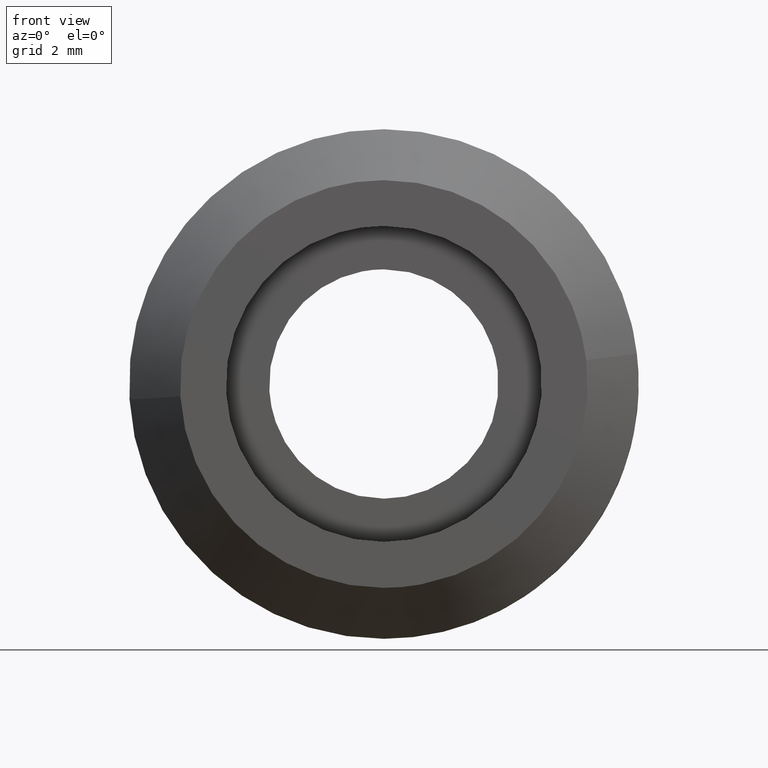
[diagram: clean part render]
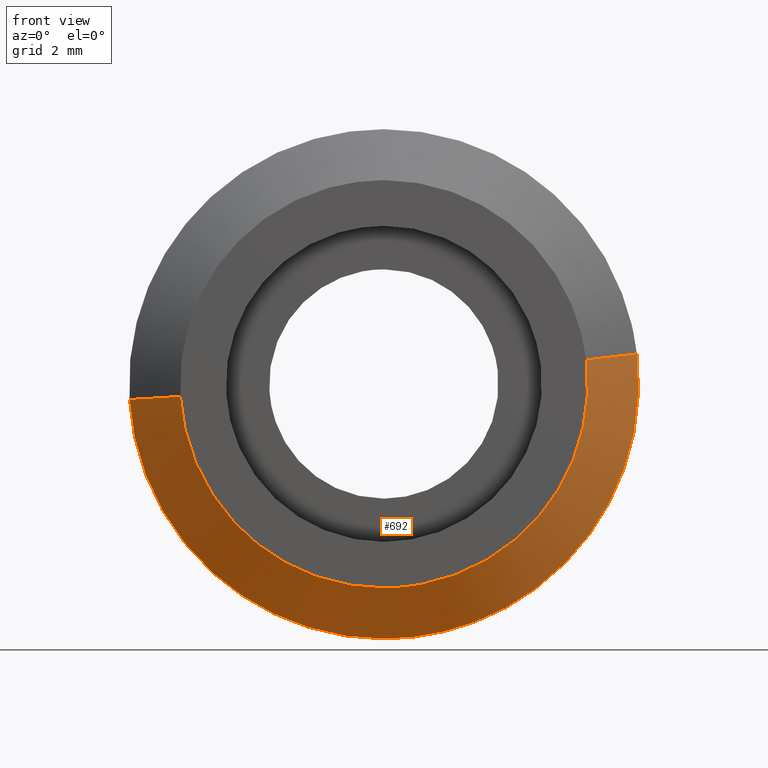
[diagram: same view with one face highlighted and labeled with its STEP entity id]
A machine part, front view. The second image highlights one B-rep face of the part: STEP entity #692.
In plain terms, the highlighted face is a freeform B-spline surface patch.
Its self-contained STEP definition (entity closure, byte-faithful):
#62=CARTESIAN_POINT('',(1.758087682605363,1.053535E-014,-4.680718716208636));
#63=VERTEX_POINT('',#62);
#64=CARTESIAN_POINT('',(0.0,0.0,-5.0));
#65=VERTEX_POINT('',#64);
#66=CARTESIAN_POINT('',(1.758087682605364,1.053535E-014,-4.680718716208636));
#67=CARTESIAN_POINT('',(0.908035722421032,0.0,-5.000000000000001));
#68=CARTESIAN_POINT('',(0.0,0.0,-5.0));
#76=(BOUNDED_CURVE()B_SPLINE_CURVE(2,(#66,#67,#68),.UNSPECIFIED.,.F.,.U.)B_SPLINE_CURVE_WITH_KNOTS((3,3),(0.440284244778167,0.500000000000000),.UNSPECIFIED.)CURVE()GEOMETRIC_REPRESENTATION_ITEM()RATIONAL_B_SPLINE_CURVE((0.893499645046490,0.930038640956804,1.0))REPRESENTATION_ITEM(''));
#77=EDGE_CURVE('',#63,#65,#76,.T.);
#79=CARTESIAN_POINT('',(-4.990673992109418,2.867984E-013,-0.305242697675468));
#80=VERTEX_POINT('',#79);
#81=CARTESIAN_POINT('',(0.0,0.0,-5.0));
#82=CARTESIAN_POINT('',(-4.703530334524016,0.0,-5.0));
#83=CARTESIAN_POINT('',(-4.990673992109418,2.867984E-013,-0.305242697675468));
#91=(BOUNDED_CURVE()B_SPLINE_CURVE(2,(#81,#82,#83),.UNSPECIFIED.,.F.,.U.)B_SPLINE_CURVE_WITH_KNOTS((3,3),(0.500000000000000,0.739332962241805),.UNSPECIFIED.)CURVE()GEOMETRIC_REPRESENTATION_ITEM()RATIONAL_B_SPLINE_CURVE((1.0,0.719603993283357,0.976072041672852))REPRESENTATION_ITEM(''));
#92=EDGE_CURVE('',#65,#80,#91,.T.);
#161=CARTESIAN_POINT('',(4.965047631818395,9.866747E-013,0.590171173291608));
#162=VERTEX_POINT('',#161);
#163=CARTESIAN_POINT('',(4.965047631818395,9.866747E-013,0.590171173291608));
#164=CARTESIAN_POINT('',(5.0,0.0,0.296120598267331));
#165=CARTESIAN_POINT('',(5.0,0.0,0.0));
#166=CARTESIAN_POINT('',(5.0,0.0,-3.463049708763557));
#167=CARTESIAN_POINT('',(1.758087682605364,1.053535E-014,-4.680718716208636));
#175=(BOUNDED_CURVE()B_SPLINE_CURVE(2,(#163,#164,#165,#166,#167),.UNSPECIFIED.,.F.,.U.)B_SPLINE_CURVE_WITH_KNOTS((3,2,3),(0.229562473515120,0.250000000000000,0.440284244778167),.UNSPECIFIED.)CURVE()GEOMETRIC_REPRESENTATION_ITEM()RATIONAL_B_SPLINE_CURVE((0.956026754186858,0.976055948333033,1.0,0.777068140229744,0.893499645046490))REPRESENTATION_ITEM(''));
#176=EDGE_CURVE('',#162,#63,#175,.T.);
#621=CARTESIAN_POINT('',(3.947212867295573,-1.025000000000000,0.469186082760615));
#622=CARTESIAN_POINT('',(3.960640771408207,-1.025000000000000,0.356218546335961));
#623=CARTESIAN_POINT('',(3.967585823726919,-1.025000000000000,0.242667944651057));
#624=CARTESIAN_POINT('',(4.210253768377976,-1.025000000000000,-3.724917879075863));
#625=CARTESIAN_POINT('',(0.242667944651057,-1.025000000000000,-3.967585823726919));
#626=CARTESIAN_POINT('',(-3.724917879075863,-1.025000000000000,-4.210253768377976));
#627=CARTESIAN_POINT('',(-3.967585823726919,-1.025000000000000,-0.242667944651057));
#628=CARTESIAN_POINT('',(4.990493500931398,0.025625000000000,0.593195800546872));
#629=CARTESIAN_POINT('',(5.007470509888897,0.025625000000000,0.450370020611236));
#630=CARTESIAN_POINT('',(5.016251196318892,0.025625000000000,0.306807066499866));
#631=CARTESIAN_POINT('',(5.323058262818757,0.025625000000000,-4.709444129819027));
#632=CARTESIAN_POINT('',(0.306807066499866,0.025625000000000,-5.016251196318892));
#633=CARTESIAN_POINT('',(-4.709444129819027,0.025625000000000,-5.323058262818757));
#634=CARTESIAN_POINT('',(-5.016251196318892,0.025625000000000,-0.306807066499866));
#642=(BOUNDED_SURFACE()B_SPLINE_SURFACE(2,1,((#621,#628),(#622,#629),(#623,#630),(#624,#631),(#625,#632),(#626,#633),(#627,#634)),.UNSPECIFIED.,.F.,.F.,.U.)B_SPLINE_SURFACE_WITH_KNOTS((3,2,2,3),(2,2),(0.0,0.333069125504206,8.659797263109345,16.986525400714481),(0.0,1.0),.UNSPECIFIED.)GEOMETRIC_REPRESENTATION_ITEM()RATIONAL_B_SPLINE_SURFACE(((0.977505800795127,0.977505800795127),(0.988284271247462,0.988284271247462),(1.0,1.0),(0.707106781186548,0.707106781186548),(1.0,1.0),(0.707106781186548,0.707106781186548),(1.0,1.0)))REPRESENTATION_ITEM('')SURFACE());
#643=CARTESIAN_POINT('',(3.972038105454676,-0.999999999999833,0.472136938628357));
#644=VERTEX_POINT('',#643);
#645=CARTESIAN_POINT('',(0.0,-1.0,-4.0));
#646=VERTEX_POINT('',#645);
#647=CARTESIAN_POINT('',(3.972038105454676,-0.999999999999833,0.472136938628357));
#648=CARTESIAN_POINT('',(4.0,-1.0,0.236896478608957));
#649=CARTESIAN_POINT('',(4.0,-1.0,0.0));
#650=CARTESIAN_POINT('',(4.000000000000000,-1.0,-4.000000000000000));
#651=CARTESIAN_POINT('',(0.0,-1.0,-4.0));
#659=(BOUNDED_CURVE()B_SPLINE_CURVE(2,(#647,#648,#649,#650,#651),.UNSPECIFIED.,.F.,.U.)B_SPLINE_CURVE_WITH_KNOTS((3,2,3),(0.229562473515533,0.250000000000000,0.500000000000000),.UNSPECIFIED.)CURVE()GEOMETRIC_REPRESENTATION_ITEM()RATIONAL_B_SPLINE_CURVE((0.956026754187668,0.976055948333518,1.0,0.707106781186548,1.0))REPRESENTATION_ITEM(''));
#660=EDGE_CURVE('',#644,#646,#659,.T.);
#661=ORIENTED_EDGE('',*,*,#660,.T.);
#662=CARTESIAN_POINT('',(-3.992538569656476,-1.000000655735983,-0.244193619731834));
#663=VERTEX_POINT('',#662);
#664=CARTESIAN_POINT('',(0.0,-1.0,-4.0));
#665=CARTESIAN_POINT('',(-3.762824738201963,-1.0,-4.0));
#666=CARTESIAN_POINT('',(-3.992538569656476,-1.000000655735983,-0.244193619731833));
#674=(BOUNDED_CURVE()B_SPLINE_CURVE(2,(#664,#665,#666),.UNSPECIFIED.,.F.,.U.)B_SPLINE_CURVE_WITH_KNOTS((3,3),(0.500000000000000,0.739332983780438),.UNSPECIFIED.)CURVE()GEOMETRIC_REPRESENTATION_ITEM()RATIONAL_B_SPLINE_CURVE((1.0,0.719603968049279,0.976072087834246))REPRESENTATION_ITEM(''));
#675=EDGE_CURVE('',#646,#663,#674,.T.);
#676=ORIENTED_EDGE('',*,*,#675,.T.);
#677=CARTESIAN_POINT('',(-3.992538569656476,-1.000000655735983,-0.244193619731834));
#678=CARTESIAN_POINT('',(-4.990673992109418,2.867984E-013,-0.305242697675468));
#679=QUASI_UNIFORM_CURVE('',1,(#677,#678),.UNSPECIFIED.,.F.,.U.);
#680=EDGE_CURVE('',#663,#80,#679,.T.);
#681=ORIENTED_EDGE('',*,*,#680,.T.);
#682=ORIENTED_EDGE('',*,*,#92,.F.);
#683=ORIENTED_EDGE('',*,*,#77,.F.);
#684=ORIENTED_EDGE('',*,*,#176,.F.);
#685=CARTESIAN_POINT('',(3.972038105454676,-0.999999999999833,0.472136938628357));
#686=CARTESIAN_POINT('',(4.965047631818395,9.866747E-013,0.590171173291608));
#687=QUASI_UNIFORM_CURVE('',1,(#685,#686),.UNSPECIFIED.,.F.,.U.);
#688=EDGE_CURVE('',#644,#162,#687,.T.);
#689=ORIENTED_EDGE('',*,*,#688,.F.);
#690=EDGE_LOOP('',(#661,#676,#681,#682,#683,#684,#689));
#691=FACE_OUTER_BOUND('',#690,.T.);
#692=ADVANCED_FACE('',(#691),#642,.T.);